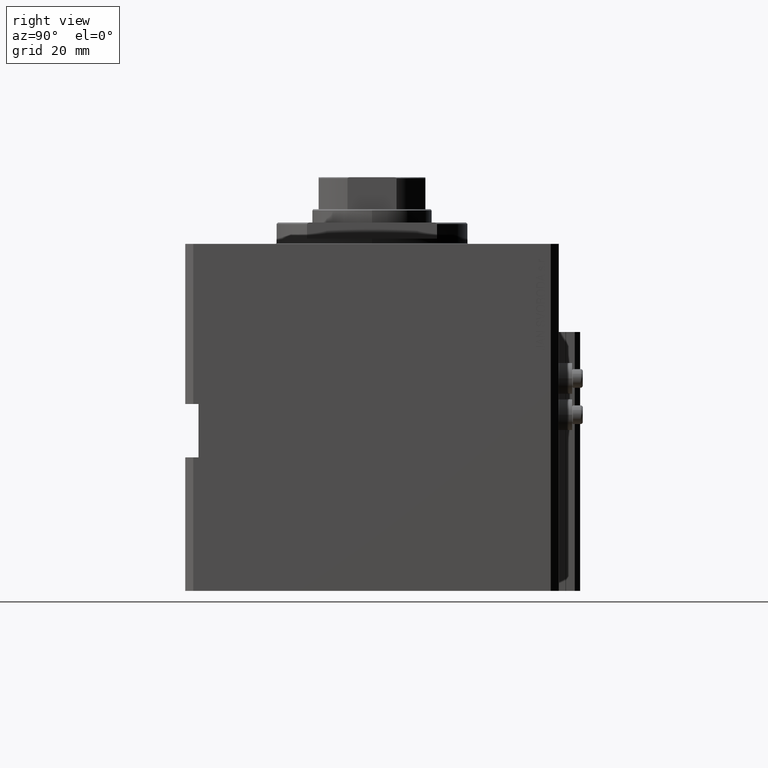
[diagram: clean part render]
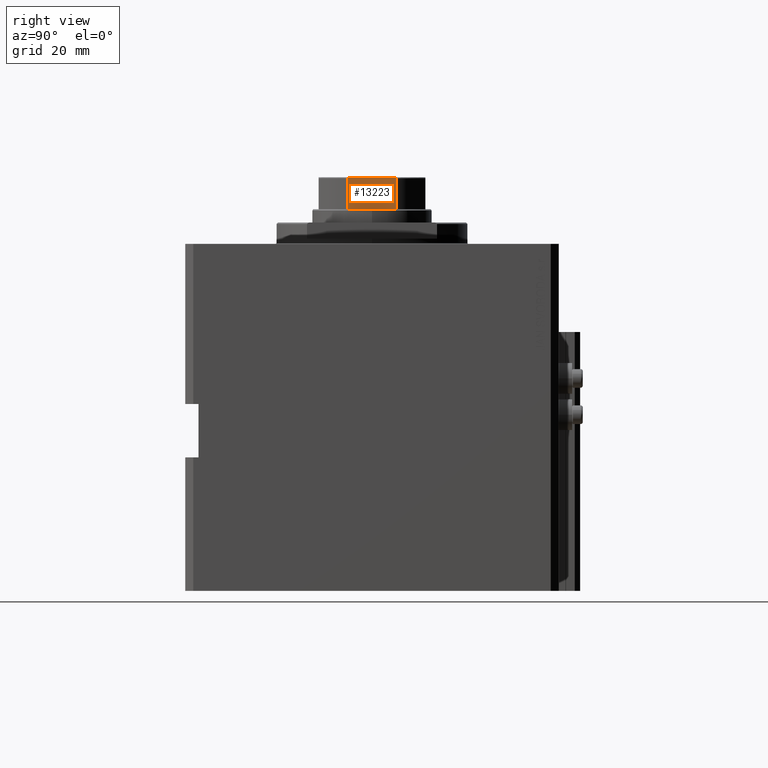
[diagram: same view with one face highlighted and labeled with its STEP entity id]
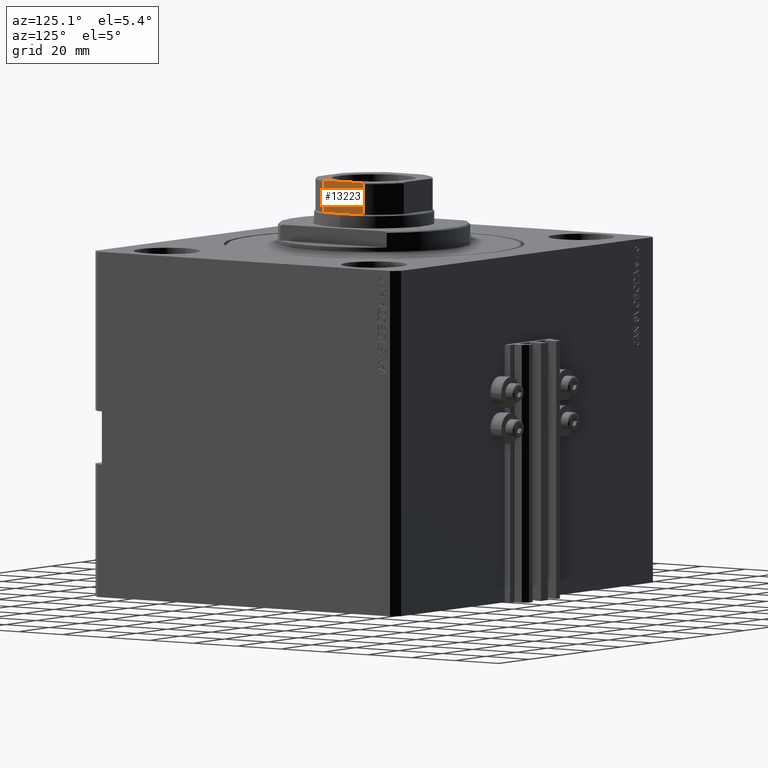
[diagram: same view with one face highlighted and labeled with its STEP entity id]
A machine part, right view. The second image highlights one B-rep face of the part: STEP entity #13223.
A second angle (auxiliary view) of the same face is appended — the face is thin or edge-on in the first view.
In plain terms, the highlighted planar face has unit normal (-1, -0, 0).
Its self-contained STEP definition (entity closure, byte-faithful):
#499 = LINE ( 'NONE', #19843, #12939 ) ;
#656 = CARTESIAN_POINT ( 'NONE',  ( 19.99999999999999645, 9.165151389911683211, 125.6000000000000227 ) ) ;
#673 = VECTOR ( 'NONE', #23756, 1000.000000000000000 ) ;
#1478 = CARTESIAN_POINT ( 'NONE',  ( 19.99999999999999645, -8.134318822980981523, 126.1000000000000227 ) ) ;
#1943 = LINE ( 'NONE', #28153, #673 ) ;
#3147 = CARTESIAN_POINT ( 'NONE',  ( 20.00000000000000000, 7.889866919029748793, 126.1000000000000227 ) ) ;
#3856 = CARTESIAN_POINT ( 'NONE',  ( 20.00000000000000000, 9.005650948982596660, 125.8512182151568766 ) ) ;
#5916 = ORIENTED_EDGE ( 'NONE', *, *, #46474, .T. ) ;
#5946 = VECTOR ( 'NONE', #29336, 1000.000000000000000 ) ;
#6334 = ORIENTED_EDGE ( 'NONE', *, *, #31335, .T. ) ;
#6385 = LINE ( 'NONE', #7351, #38232 ) ;
#7351 = CARTESIAN_POINT ( 'NONE',  ( 19.99999999999999645, 9.165151389911683211, -0.001000000000001000089 ) ) ;
#8270 = CARTESIAN_POINT ( 'NONE',  ( 19.99999999999999645, 8.731041210088305249, 125.9862065548025498 ) ) ;
#11883 = CARTESIAN_POINT ( 'NONE',  ( 19.99999999999999289, -9.165151389911693869, 114.1000000000001364 ) ) ;
#11935 = CARTESIAN_POINT ( 'NONE',  ( 19.99999999999999645, 9.055524318101896952, 125.8141986763098004 ) ) ;
#12193 = ORIENTED_EDGE ( 'NONE', *, *, #20486, .F. ) ;
#12369 = VERTEX_POINT ( 'NONE', #14131 ) ;
#12939 = VECTOR ( 'NONE', #19368, 1000.000000000000000 ) ;
#13223 = ADVANCED_FACE ( 'NONE', ( #32013 ), #38875, .F. ) ;
#13406 = DIRECTION ( 'NONE',  ( 1.734723475976806848E-16, -1.000000000000000000, 0.000000000000000000 ) ) ;
#14131 = CARTESIAN_POINT ( 'NONE',  ( 19.99999999999999645, 9.165151389911683211, 114.1000000000001364 ) ) ;
#14296 = CARTESIAN_POINT ( 'NONE',  ( 20.00000000000000000, -7.889866919029739911, 126.1000000000000227 ) ) ;
#15862 = CARTESIAN_POINT ( 'NONE',  ( 20.00000000000001066, 8.377106304411501725, 126.0787779673725737 ) ) ;
#17156 = CARTESIAN_POINT ( 'NONE',  ( 20.00000000000000000, -7.889866919029739911, 126.1000000000000227 ) ) ;
#17401 = CARTESIAN_POINT ( 'NONE',  ( 20.00000000000000355, -9.165151389911670776, 125.6622865831653115 ) ) ;
#17419 = B_SPLINE_CURVE_WITH_KNOTS ( 'NONE', 3,
 ( #17156, #1478, #43604, #24013, #39687, #32095, #24734, #36012, #17401, #47272 ),
 .UNSPECIFIED., .F., .F.,
 ( 4, 2, 2, 2, 4 ),
 ( 1.734723475976807094E-18, 0.0007281986681936650002, 0.001092298002290506987, 0.001274347669338925758, 0.001456397336387344529 ),
 .UNSPECIFIED. ) ;
#19368 = DIRECTION ( 'NONE',  ( -1.734723475976807094E-16, 1.000000000000000000, -0.000000000000000000 ) ) ;
#19843 = CARTESIAN_POINT ( 'NONE',  ( 19.99999999999999645, 20.00000000000000000, 126.1000000000000227 ) ) ;
#20486 = EDGE_CURVE ( 'NONE', #43415, #41522, #32042, .T. ) ;
#21311 = CARTESIAN_POINT ( 'NONE',  ( 19.99999999999999645, 9.165151389911683211, 125.6000000000000227 ) ) ;
#22475 = CARTESIAN_POINT ( 'NONE',  ( 19.99999999999999645, 9.165151389911683211, 125.6624095850606437 ) ) ;
#22728 = EDGE_CURVE ( 'NONE', #39971, #46235, #499, .T. ) ;
#23756 = DIRECTION ( 'NONE',  ( -1.734723475976807094E-16, 1.000000000000000000, -0.000000000000000000 ) ) ;
#24013 = CARTESIAN_POINT ( 'NONE',  ( 20.00000000000000711, -8.731854386667054158, 125.9859761974170027 ) ) ;
#24734 = CARTESIAN_POINT ( 'NONE',  ( 20.00000000000000000, -9.056020599733278331, 125.8137161059354412 ) ) ;
#26358 = EDGE_LOOP ( 'NONE', ( #42920, #32831, #12193, #43407, #6334, #5916 ) ) ;
#28153 = CARTESIAN_POINT ( 'NONE',  ( 19.99999999999999645, 20.00000000000000000, 114.1000000000000085 ) ) ;
#29090 = CARTESIAN_POINT ( 'NONE',  ( 19.99999999999999289, -9.165151389911693869, -0.001000000000001000089 ) ) ;
#29336 = DIRECTION ( 'NONE',  ( -0.000000000000000000, -0.000000000000000000, 1.000000000000000000 ) ) ;
#30552 = CARTESIAN_POINT ( 'NONE',  ( 19.99999999999999289, 9.135943898188777723, 125.7204496596642542 ) ) ;
#30792 = CARTESIAN_POINT ( 'NONE',  ( 20.00000000000001066, 8.134263528852963887, 126.1000000000001080 ) ) ;
#30838 = B_SPLINE_CURVE_WITH_KNOTS ( 'NONE', 3,
 ( #656, #22475, #30552, #11935, #3856, #41813, #8270, #15862, #30792, #45729 ),
 .UNSPECIFIED., .F., .F.,
 ( 4, 2, 2, 2, 4 ),
 ( 0.000000000000000000, 0.0001842078696387952543, 0.0003684157392775905086, 0.0007368314785551765720, 0.001473662957110353578 ),
 .UNSPECIFIED. ) ;
#31335 = EDGE_CURVE ( 'NONE', #12369, #38489, #6385, .T. ) ;
#32013 = FACE_OUTER_BOUND ( 'NONE', #26358, .T. ) ;
#32042 = LINE ( 'NONE', #29090, #5946 ) ;
#32095 = CARTESIAN_POINT ( 'NONE',  ( 20.00000000000000355, -9.005944049512766725, 125.8509746237501048 ) ) ;
#32831 = ORIENTED_EDGE ( 'NONE', *, *, #39143, .T. ) ;
#34289 = EDGE_CURVE ( 'NONE', #43415, #12369, #1943, .T. ) ;
#36012 = CARTESIAN_POINT ( 'NONE',  ( 20.00000000000000000, -9.135966866521641805, 125.7203262903151000 ) ) ;
#36253 = DIRECTION ( 'NONE',  ( -0.000000000000000000, -0.000000000000000000, 1.000000000000000000 ) ) ;
#38232 = VECTOR ( 'NONE', #36253, 1000.000000000000000 ) ;
#38489 = VERTEX_POINT ( 'NONE', #21311 ) ;
#38875 = PLANE ( 'NONE',  #47942 ) ;
#39143 = EDGE_CURVE ( 'NONE', #39971, #41522, #17419, .T. ) ;
#39353 = DIRECTION ( 'NONE',  ( -1.000000000000000000, -1.734723475976806848E-16, 0.000000000000000000 ) ) ;
#39687 = CARTESIAN_POINT ( 'NONE',  ( 20.00000000000000000, -8.849170428565228619, 125.9446655850051968 ) ) ;
#39971 = VERTEX_POINT ( 'NONE', #14296 ) ;
#41522 = VERTEX_POINT ( 'NONE', #43671 ) ;
#41813 = CARTESIAN_POINT ( 'NONE',  ( 20.00000000000000000, 8.847700323750256501, 125.9454059444999814 ) ) ;
#42920 = ORIENTED_EDGE ( 'NONE', *, *, #22728, .F. ) ;
#43407 = ORIENTED_EDGE ( 'NONE', *, *, #34289, .T. ) ;
#43415 = VERTEX_POINT ( 'NONE', #11883 ) ;
#43604 = CARTESIAN_POINT ( 'NONE',  ( 20.00000000000000000, -8.376270842886095025, 126.0790317661354152 ) ) ;
#43671 = CARTESIAN_POINT ( 'NONE',  ( 19.99999999999999289, -9.165151389911693869, 125.6000000000000227 ) ) ;
#45729 = CARTESIAN_POINT ( 'NONE',  ( 20.00000000000000000, 7.889866919029748793, 126.1000000000000227 ) ) ;
#46235 = VERTEX_POINT ( 'NONE', #3147 ) ;
#46474 = EDGE_CURVE ( 'NONE', #38489, #46235, #30838, .T. ) ;
#46944 = CARTESIAN_POINT ( 'NONE',  ( 19.99999999999999645, 20.00000000000000000, 126.1000000000000227 ) ) ;
#47272 = CARTESIAN_POINT ( 'NONE',  ( 19.99999999999999289, -9.165151389911693869, 125.6000000000000227 ) ) ;
#47942 = AXIS2_PLACEMENT_3D ( 'NONE', #46944, #39353, #13406 ) ;